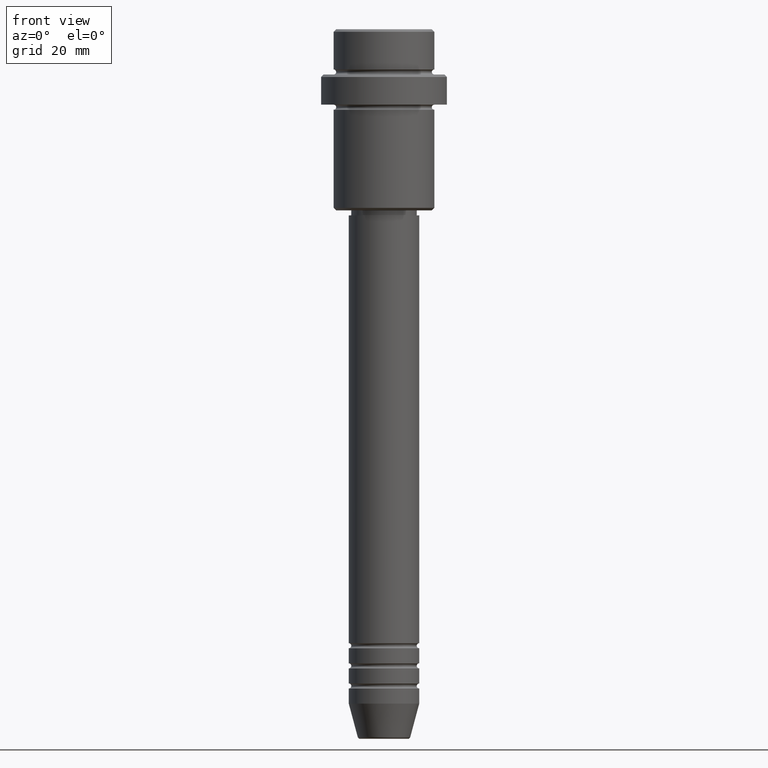
[diagram: clean part render]
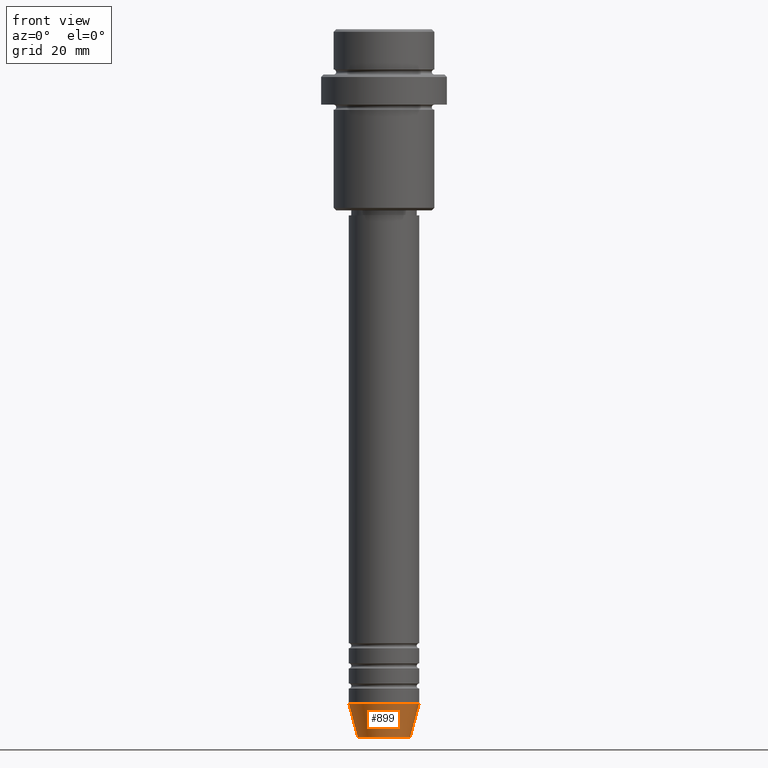
[diagram: same view with one face highlighted and labeled with its STEP entity id]
A machine part, front view. The second image highlights one B-rep face of the part: STEP entity #899.
In plain terms, the highlighted conical surface has half-angle 15 deg.
Its self-contained STEP definition (entity closure, byte-faithful):
#4 = ORIENTED_EDGE ( 'NONE', *, *, #228, .F. ) ;
#135 = VERTEX_POINT ( 'NONE', #773 ) ;
#153 = CONICAL_SURFACE ( 'NONE', #721, 7.000000000000000000, 0.2617993877991501295 ) ;
#158 = CARTESIAN_POINT ( 'NONE',  ( 0.000000000000000000, 0.000000000000000000, -140.6294095225512422 ) ) ;
#228 = EDGE_CURVE ( 'NONE', #1247, #1253, #967, .T. ) ;
#263 = FACE_OUTER_BOUND ( 'NONE', #1296, .T. ) ;
#283 = DIRECTION ( 'NONE',  ( -0.000000000000000000, -0.000000000000000000, 1.000000000000000000 ) ) ;
#297 = DIRECTION ( 'NONE',  ( 0.2588190451025214056, 0.000000000000000000, 0.9659258262890680902 ) ) ;
#317 = EDGE_CURVE ( 'NONE', #808, #1247, #401, .T. ) ;
#331 = CARTESIAN_POINT ( 'NONE',  ( 7.000000000000000000, 0.000000000000000000, -133.9999999999999716 ) ) ;
#401 = LINE ( 'NONE', #1037, #1286 ) ;
#497 = AXIS2_PLACEMENT_3D ( 'NONE', #158, #283, #1126 ) ;
#655 = VECTOR ( 'NONE', #297, 1000.000000000000000 ) ;
#691 = DIRECTION ( 'NONE',  ( -0.2588190451025214056, 3.169619151431772953E-17, 0.9659258262890680902 ) ) ;
#698 = DIRECTION ( 'NONE',  ( 1.000000000000000000, 0.000000000000000000, 0.000000000000000000 ) ) ;
#721 = AXIS2_PLACEMENT_3D ( 'NONE', #1142, #1025, #1228 ) ;
#731 = ORIENTED_EDGE ( 'NONE', *, *, #317, .F. ) ;
#773 = CARTESIAN_POINT ( 'NONE',  ( 5.223655072137191269, 0.000000000000000000, -140.6294095225512422 ) ) ;
#808 = VERTEX_POINT ( 'NONE', #868 ) ;
#868 = CARTESIAN_POINT ( 'NONE',  ( -5.223655072137191269, 7.484830028987061160E-16, -140.6294095225512422 ) ) ;
#899 = ADVANCED_FACE ( 'NONE', ( #263 ), #153, .T. ) ;
#912 = CARTESIAN_POINT ( 'NONE',  ( 0.000000000000000000, 0.000000000000000000, -133.9999999999999716 ) ) ;
#937 = EDGE_CURVE ( 'NONE', #808, #135, #1221, .T. ) ;
#967 = CIRCLE ( 'NONE', #1263, 7.000000000000000000 ) ;
#1025 = DIRECTION ( 'NONE',  ( -0.000000000000000000, -0.000000000000000000, 1.000000000000000000 ) ) ;
#1037 = CARTESIAN_POINT ( 'NONE',  ( -7.000000000000000000, 8.572527594031473190E-16, -133.9999999999999716 ) ) ;
#1088 = EDGE_CURVE ( 'NONE', #135, #1253, #1261, .T. ) ;
#1126 = DIRECTION ( 'NONE',  ( 1.000000000000000000, 0.000000000000000000, 0.000000000000000000 ) ) ;
#1142 = CARTESIAN_POINT ( 'NONE',  ( 0.000000000000000000, 0.000000000000000000, -133.9999999999999716 ) ) ;
#1165 = ORIENTED_EDGE ( 'NONE', *, *, #1088, .T. ) ;
#1221 = CIRCLE ( 'NONE', #497, 5.223655072137191269 ) ;
#1228 = DIRECTION ( 'NONE',  ( 1.000000000000000000, 0.000000000000000000, 0.000000000000000000 ) ) ;
#1235 = DIRECTION ( 'NONE',  ( -0.000000000000000000, -0.000000000000000000, 1.000000000000000000 ) ) ;
#1247 = VERTEX_POINT ( 'NONE', #1294 ) ;
#1253 = VERTEX_POINT ( 'NONE', #331 ) ;
#1261 = LINE ( 'NONE', #1276, #655 ) ;
#1263 = AXIS2_PLACEMENT_3D ( 'NONE', #912, #1235, #698 ) ;
#1276 = CARTESIAN_POINT ( 'NONE',  ( 7.000000000000000000, 0.000000000000000000, -133.9999999999999716 ) ) ;
#1286 = VECTOR ( 'NONE', #691, 1000.000000000000000 ) ;
#1294 = CARTESIAN_POINT ( 'NONE',  ( -7.000000000000000000, 8.572527594031473190E-16, -133.9999999999999716 ) ) ;
#1296 = EDGE_LOOP ( 'NONE', ( #731, #1409, #1165, #4 ) ) ;
#1409 = ORIENTED_EDGE ( 'NONE', *, *, #937, .T. ) ;